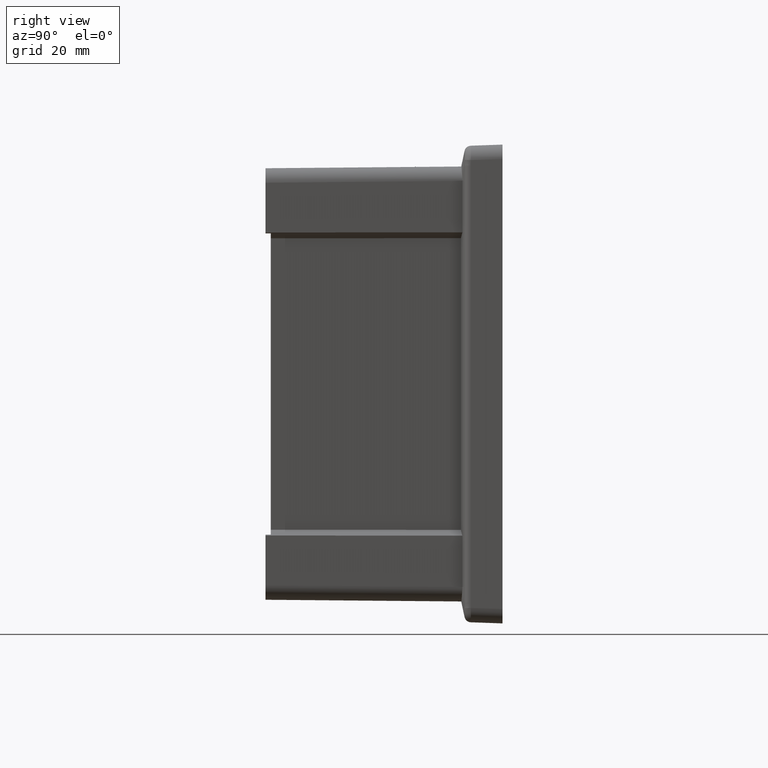
[diagram: clean part render]
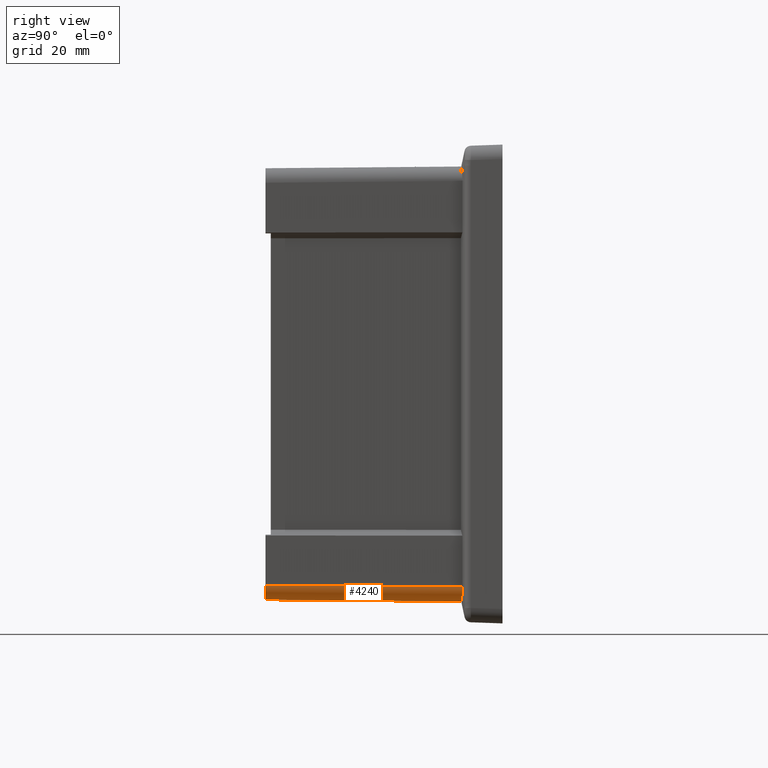
[diagram: same view with one face highlighted and labeled with its STEP entity id]
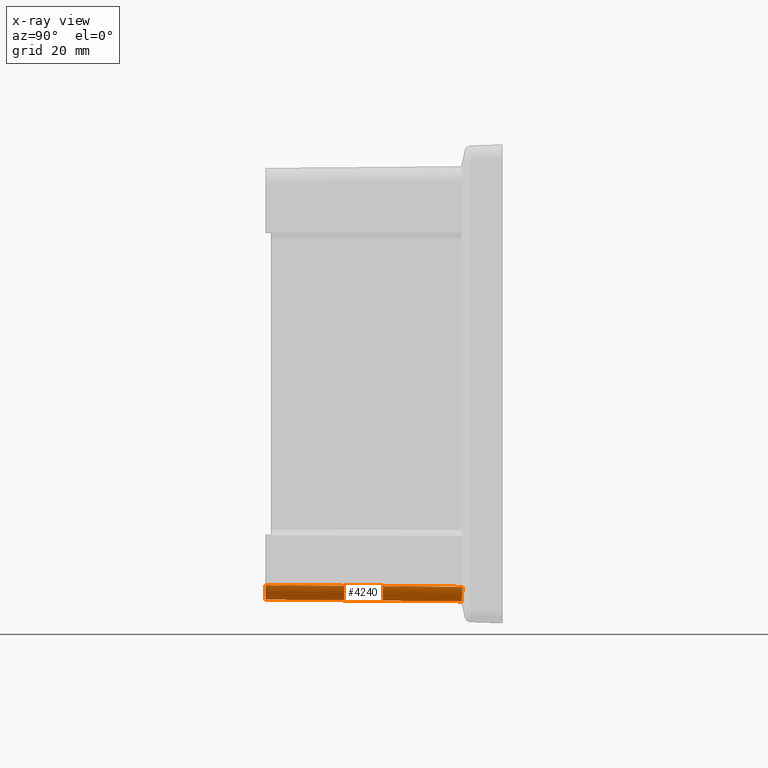
[diagram: x-ray of the same camera — body ghosted, the highlighted face saturated]
A machine part, right view. The second image highlights one B-rep face of the part: STEP entity #4240.
The next image is the same camera in x-ray: the body ghosted, the highlighted face saturated — about 0% of this face is hidden behind the body in this view.
In plain terms, the highlighted cylindrical surface (edge-blend (fillet) strip) has radius 5.5 mm, axis along (0.0087, 0.9999, -0.0087).
Its self-contained STEP definition (entity closure, byte-faithful):
#337 = ORIENTED_EDGE ( 'NONE', *, *, #9864, .F. ) ;
#781 = ORIENTED_EDGE ( 'NONE', *, *, #10014, .T. ) ;
#800 = CARTESIAN_POINT ( 'NONE',  ( 78.74172416917483000, -15.58811822332539300, -82.50782567875138800 ) ) ;
#1031 = VERTEX_POINT ( 'NONE', #11151 ) ;
#1326 = FACE_OUTER_BOUND ( 'NONE', #10268, .T. ) ;
#1613 = CARTESIAN_POINT ( 'NONE',  ( 80.16983023744710100, -90.00000000000000000, -81.94786727501778500 ) ) ;
#1933 = CARTESIAN_POINT ( 'NONE',  ( 80.58821269049309400, -15.51952698639593500, -81.72297031112545100 ) ) ;
#1983 = CARTESIAN_POINT ( 'NONE',  ( 81.05474887889768400, -15.49400393643374400, -81.38590359210624600 ) ) ;
#2435 = VERTEX_POINT ( 'NONE', #10075 ) ;
#2638 = CARTESIAN_POINT ( 'NONE',  ( 83.00785621424113000, -15.26050829918655600, -78.26110230216248500 ) ) ;
#2688 = CARTESIAN_POINT ( 'NONE',  ( 82.82532827458089700, -15.29930581044944700, -78.81566846791031400 ) ) ;
#2772 = EDGE_CURVE ( 'NONE', #5798, #10853, #5461, .T. ) ;
#2774 = ORIENTED_EDGE ( 'NONE', *, *, #4906, .F. ) ;
#3087 = CYLINDRICAL_SURFACE ( 'NONE', #6082, 5.500000000000002700 ) ;
#3110 = CARTESIAN_POINT ( 'NONE',  ( 82.82532827458089700, -15.29930581044944700, -78.81566846791031400 ) ) ;
#3491 = CARTESIAN_POINT ( 'NONE',  ( 77.61237066563215600, -13.83145503364615300, -77.11237066563208500 ) ) ;
#4240 = ADVANCED_FACE ( 'NONE', ( #1326 ), #3087, .T. ) ;
#4541 = EDGE_CURVE ( 'NONE', #1031, #5798, #11425, .T. ) ;
#4906 = EDGE_CURVE ( 'NONE', #10853, #2435, #12345, .T. ) ;
#5346 = CARTESIAN_POINT ( 'NONE',  ( 78.17692125761954000, -15.60439212360598700, -82.59710790916824400 ) ) ;
#5461 =( BOUNDED_CURVE ( )  B_SPLINE_CURVE ( 3, ( #14057, #1613, #10477, #8455 ),
 .UNSPECIFIED., .F., .F. ) 
 B_SPLINE_CURVE_WITH_KNOTS ( ( 4, 4 ),
 ( 5.497825219993075900, 7.068545394366093000 ),
 .UNSPECIFIED. ) 
 CURVE ( )  GEOMETRIC_REPRESENTATION_ITEM ( )  RATIONAL_B_SPLINE_CURVE ( ( 1.000000000000000000, 0.8047558030806115600, 0.8047558030806115600, 1.000000000000000000 ) ) 
 REPRESENTATION_ITEM ( '' )  );
#5574 = ORIENTED_EDGE ( 'NONE', *, *, #2772, .F. ) ;
#5798 = VERTEX_POINT ( 'NONE', #13391 ) ;
#5923 = CARTESIAN_POINT ( 'NONE',  ( 83.10028038032460500, -15.24086293622863100, -77.68455113403756200 ) ) ;
#6082 = AXIS2_PLACEMENT_3D ( 'NONE', #3491, #13721, #8063 ) ;
#6198 = B_SPLINE_CURVE_WITH_KNOTS ( 'NONE', 3,
 ( #13241, #5346, #800, #9949, #8731, #6539, #1933, #1983, #9848, #13286, #14431, #7620, #10903, #8785, #12263, #3110 ),
 .UNSPECIFIED., .F., .F.,
 ( 4, 2, 2, 2, 2, 2, 2, 4 ),
 ( 0.0000000000000000000, 0.001716006084504198100, 0.002574009126756303300, 0.003432012169008409200, 0.004290015211260515500, 0.005148018253512619600, 0.006006021295764725500, 0.006864024338016830500 ),
 .UNSPECIFIED. ) ;
#6539 = CARTESIAN_POINT ( 'NONE',  ( 80.34394911683776300, -15.53080685198281500, -81.87177581232840900 ) ) ;
#6837 = ORIENTED_EDGE ( 'NONE', *, *, #4541, .F. ) ;
#7620 = CARTESIAN_POINT ( 'NONE',  ( 82.20737103749745200, -15.39622867510708200, -80.11483244804610100 ) ) ;
#7805 = CARTESIAN_POINT ( 'NONE',  ( 82.44786727501788400, -90.00000000000000000, -76.44807669816488300 ) ) ;
#8063 = DIRECTION ( 'NONE',  ( 0.0000000000000000000, 0.008726535498373794200, 0.9999619230641713100 ) ) ;
#8455 = CARTESIAN_POINT ( 'NONE',  ( 82.44786727501788400, -90.00000000000000000, -76.44807669816488300 ) ) ;
#8731 = CARTESIAN_POINT ( 'NONE',  ( 79.83386667014278300, -15.55145730227358000, -82.13063354483699600 ) ) ;
#8785 = CARTESIAN_POINT ( 'NONE',  ( 82.62360326270911100, -15.33823568616462800, -79.35584479034348200 ) ) ;
#8788 = VECTOR ( 'NONE', #12067, 1000.000000000000100 ) ;
#8841 = CARTESIAN_POINT ( 'NONE',  ( 77.61221837238605300, -13.89690205638267900, -82.61200894923892700 ) ) ;
#9848 = CARTESIAN_POINT ( 'NONE',  ( 81.27643377025916000, -15.47974051782565000, -81.19743659179417300 ) ) ;
#9864 = EDGE_CURVE ( 'NONE', #2435, #14050, #11671, .T. ) ;
#9949 = CARTESIAN_POINT ( 'NONE',  ( 79.56626990931313500, -15.56087957863779500, -82.24123878174951600 ) ) ;
#10014 = EDGE_CURVE ( 'NONE', #1031, #14050, #6198, .T. ) ;
#10075 = CARTESIAN_POINT ( 'NONE',  ( 83.10028038032463400, -15.24086293622862900, -77.10048980347163200 ) ) ;
#10268 = EDGE_LOOP ( 'NONE', ( #5574, #6837, #781, #337, #2774 ) ) ;
#10477 = CARTESIAN_POINT ( 'NONE',  ( 82.44786727501785600, -90.00000000000000000, -79.66983023744704400 ) ) ;
#10853 = VERTEX_POINT ( 'NONE', #7805 ) ;
#10903 = CARTESIAN_POINT ( 'NONE',  ( 82.36051886655204200, -15.37702278816041900, -79.86725173767044300 ) ) ;
#11071 = DIRECTION ( 'NONE',  ( -0.008726203243944222500, -0.9999238504775704900, 0.008726203243944238200 ) ) ;
#11151 = CARTESIAN_POINT ( 'NONE',  ( 77.59711863603156700, -15.62716046255105700, -82.59690921288444100 ) ) ;
#11425 = LINE ( 'NONE', #8841, #13380 ) ;
#11671 =( BOUNDED_CURVE ( )  B_SPLINE_CURVE ( 3, ( #12553, #5923, #2638, #2688 ),
 .UNSPECIFIED., .F., .F. ) 
 B_SPLINE_CURVE_WITH_KNOTS ( ( 4, 4 ),
 ( 6.243844256862549200, 6.561073568004789400 ),
 .UNSPECIFIED. ) 
 CURVE ( )  GEOMETRIC_REPRESENTATION_ITEM ( )  RATIONAL_B_SPLINE_CURVE ( ( 1.000000000000000000, 0.9916313643747374200, 0.9916313643747374200, 1.000000000000000000 ) ) 
 REPRESENTATION_ITEM ( '' )  );
#12067 = DIRECTION ( 'NONE',  ( 0.008726203243944224300, 0.9999238504775704900, -0.008726203243944238200 ) ) ;
#12118 = CARTESIAN_POINT ( 'NONE',  ( 83.11216124248510100, -13.87945097888721000, -77.11237066563209900 ) ) ;
#12263 = CARTESIAN_POINT ( 'NONE',  ( 82.73482724031210000, -15.31854239912121300, -79.09063355908540400 ) ) ;
#12345 = LINE ( 'NONE', #12118, #8788 ) ;
#12553 = CARTESIAN_POINT ( 'NONE',  ( 83.10028038032463400, -15.24086293622862900, -77.10048980347163200 ) ) ;
#13241 = CARTESIAN_POINT ( 'NONE',  ( 77.59711863603156700, -15.62716046255105700, -82.59690921288444100 ) ) ;
#13286 = CARTESIAN_POINT ( 'NONE',  ( 81.68218278376916400, -15.44883103593539900, -80.79393093133366200 ) ) ;
#13380 = VECTOR ( 'NONE', #11071, 1000.000000000000100 ) ;
#13391 = CARTESIAN_POINT ( 'NONE',  ( 76.94807669816494000, -90.00000000000000000, -81.94786727501782800 ) ) ;
#13721 = DIRECTION ( 'NONE',  ( 0.008726203243944222500, 0.9999238504775704900, -0.008726203243944236400 ) ) ;
#14050 = VERTEX_POINT ( 'NONE', #14392 ) ;
#14057 = CARTESIAN_POINT ( 'NONE',  ( 76.94807669816494000, -90.00000000000000000, -81.94786727501782800 ) ) ;
#14392 = CARTESIAN_POINT ( 'NONE',  ( 82.82532827458089700, -15.29930581044944700, -78.81566846791031400 ) ) ;
#14431 = CARTESIAN_POINT ( 'NONE',  ( 81.86841566841880500, -15.43207814363228700, -80.57745445737434400 ) ) ;